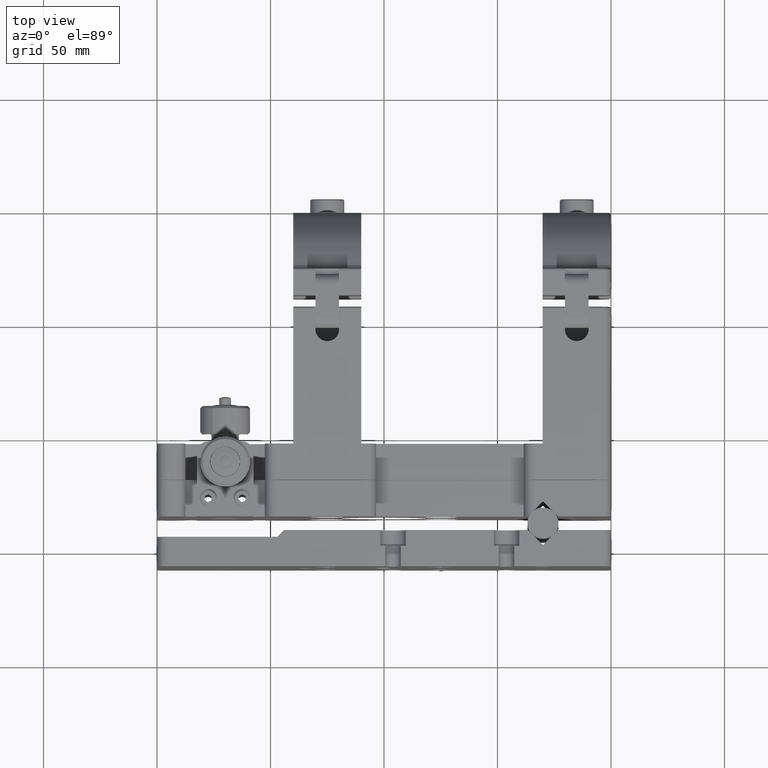
[diagram: clean part render]
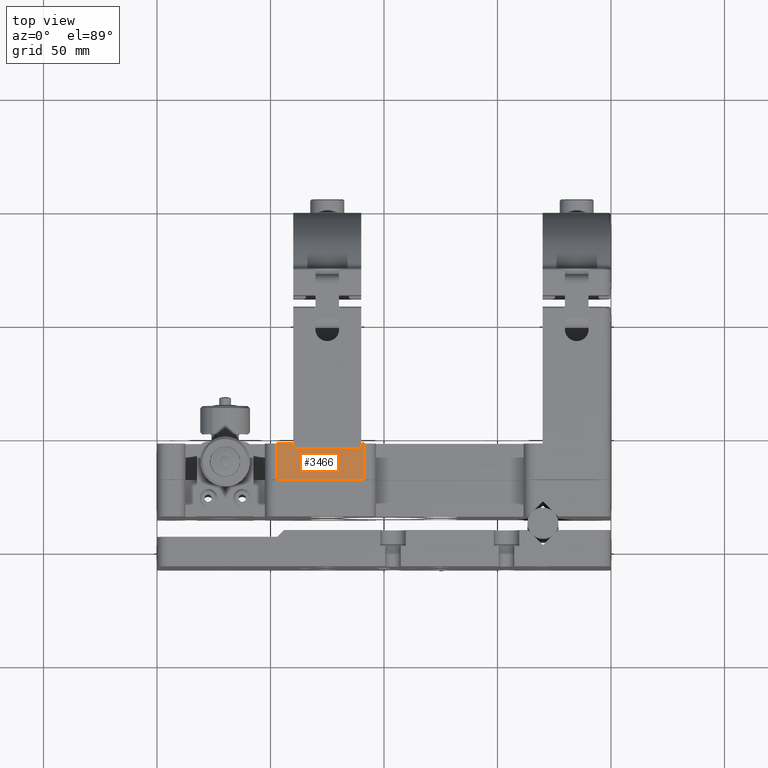
[diagram: same view with one face highlighted and labeled with its STEP entity id]
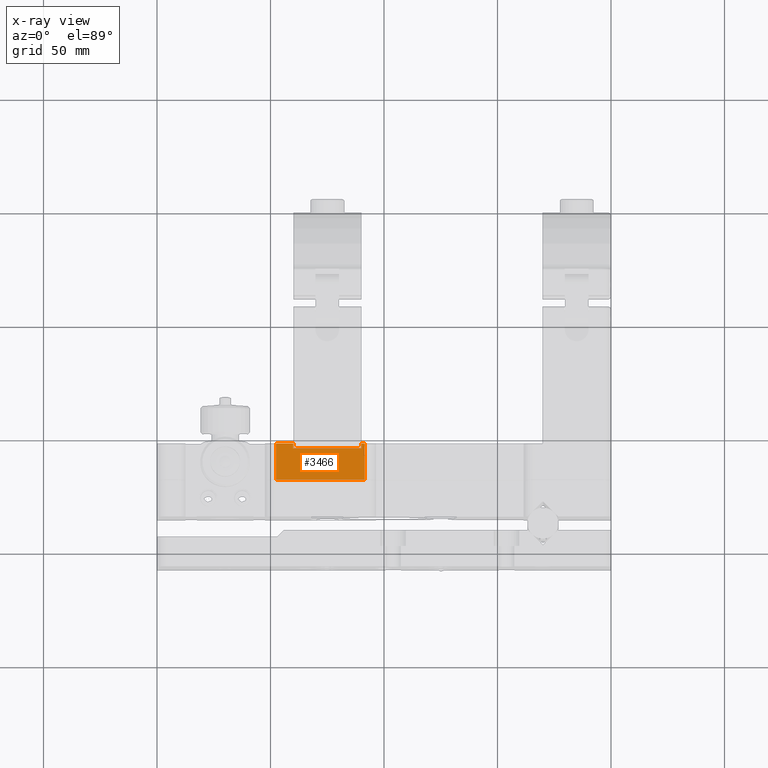
[diagram: x-ray of the same camera — body ghosted, the highlighted face saturated]
A machine part, top view. The second image highlights one B-rep face of the part: STEP entity #3466.
The next image is the same camera in x-ray: the body ghosted, the highlighted face saturated — about 0% of this face is hidden behind the body in this view.
In plain terms, the highlighted planar face has unit normal (0, 0, -1).
Its self-contained STEP definition (entity closure, byte-faithful):
#123 = VERTEX_POINT ( 'NONE', #40214 ) ;
#2191 = CARTESIAN_POINT ( 'NONE',  ( -99.99999999999998579, 46.09999999999966036, 55.00000000000000000 ) ) ;
#2724 = CARTESIAN_POINT ( 'NONE',  ( -47.49999999999999289, 30.09999999999966036, 55.00000000000000000 ) ) ;
#2845 = ORIENTED_EDGE ( 'NONE', *, *, #12804, .T. ) ;
#2850 = DIRECTION ( 'NONE',  ( 1.000000000000000000, 0.000000000000000000, 0.000000000000000000 ) ) ;
#3466 = ADVANCED_FACE ( 'NONE', ( #42874 ), #34938, .F. ) ;
#4207 = LINE ( 'NONE', #40347, #46943 ) ;
#4858 = CARTESIAN_POINT ( 'NONE',  ( -39.99999999999996447, 43.89999999999966462, 55.00000000000000000 ) ) ;
#5433 = ORIENTED_EDGE ( 'NONE', *, *, #16716, .F. ) ;
#5953 = ORIENTED_EDGE ( 'NONE', *, *, #22636, .T. ) ;
#6798 = DIRECTION ( 'NONE',  ( -0.000000000000000000, 1.000000000000000000, -0.000000000000000000 ) ) ;
#7733 = ORIENTED_EDGE ( 'NONE', *, *, #25068, .F. ) ;
#8231 = CARTESIAN_POINT ( 'NONE',  ( -99.99999999999998579, 30.09999999999966036, 55.00000000000000000 ) ) ;
#9879 = VERTEX_POINT ( 'NONE', #43553 ) ;
#10507 = EDGE_CURVE ( 'NONE', #13935, #9879, #41689, .T. ) ;
#11215 = VECTOR ( 'NONE', #28879, 1000.000000000000000 ) ;
#11571 = VECTOR ( 'NONE', #29813, 1000.000000000000000 ) ;
#11772 = VERTEX_POINT ( 'NONE', #49079 ) ;
#12804 = EDGE_CURVE ( 'NONE', #16341, #45919, #22806, .T. ) ;
#13935 = VERTEX_POINT ( 'NONE', #49245 ) ;
#14968 = VERTEX_POINT ( 'NONE', #4858 ) ;
#15438 = DIRECTION ( 'NONE',  ( -1.000000000000000000, 0.000000000000000000, -0.000000000000000000 ) ) ;
#16341 = VERTEX_POINT ( 'NONE', #31335 ) ;
#16440 = DIRECTION ( 'NONE',  ( 1.000000000000000000, 0.000000000000000000, 0.000000000000000000 ) ) ;
#16716 = EDGE_CURVE ( 'NONE', #9879, #123, #29127, .T. ) ;
#17366 = CARTESIAN_POINT ( 'NONE',  ( -8.499999999999978684, 46.09999999999966036, 55.00000000000000000 ) ) ;
#18507 = CARTESIAN_POINT ( 'NONE',  ( -99.99999999999998579, 46.09999999999966036, 55.00000000000000000 ) ) ;
#19238 = ORIENTED_EDGE ( 'NONE', *, *, #49536, .T. ) ;
#22276 = VERTEX_POINT ( 'NONE', #22986 ) ;
#22636 = EDGE_CURVE ( 'NONE', #45919, #11772, #24127, .T. ) ;
#22806 = LINE ( 'NONE', #26402, #34884 ) ;
#22986 = CARTESIAN_POINT ( 'NONE',  ( -39.99999999999996447, 46.09999999999966036, 55.00000000000000000 ) ) ;
#24127 = LINE ( 'NONE', #8231, #26998 ) ;
#25068 = EDGE_CURVE ( 'NONE', #14968, #13935, #41852, .T. ) ;
#26402 = CARTESIAN_POINT ( 'NONE',  ( -47.49999999999999289, 46.09999999999966036, 55.00000000000000000 ) ) ;
#26986 = DIRECTION ( 'NONE',  ( 0.000000000000000000, 0.000000000000000000, -1.000000000000000000 ) ) ;
#26998 = VECTOR ( 'NONE', #16440, 1000.000000000000000 ) ;
#28145 = EDGE_CURVE ( 'NONE', #14968, #22276, #4207, .T. ) ;
#28879 = DIRECTION ( 'NONE',  ( 1.000000000000000000, 0.000000000000000000, 0.000000000000000000 ) ) ;
#29127 = LINE ( 'NONE', #2191, #11215 ) ;
#29149 = LINE ( 'NONE', #17366, #33708 ) ;
#29813 = DIRECTION ( 'NONE',  ( 1.000000000000000000, -0.000000000000000000, -0.000000000000000000 ) ) ;
#29892 = CARTESIAN_POINT ( 'NONE',  ( -9.999999999999966249, 43.89999999999966462, 55.00000000000000000 ) ) ;
#30347 = ORIENTED_EDGE ( 'NONE', *, *, #46376, .F. ) ;
#30376 = VECTOR ( 'NONE', #2850, 1000.000000000000000 ) ;
#31335 = CARTESIAN_POINT ( 'NONE',  ( -47.49999999999999289, 46.09999999999966036, 55.00000000000000000 ) ) ;
#33708 = VECTOR ( 'NONE', #45293, 1000.000000000000000 ) ;
#34884 = VECTOR ( 'NONE', #45643, 1000.000000000000000 ) ;
#34938 = PLANE ( 'NONE',  #37952 ) ;
#36251 = DIRECTION ( 'NONE',  ( -0.000000000000000000, 1.000000000000000000, -0.000000000000000000 ) ) ;
#37763 = CARTESIAN_POINT ( 'NONE',  ( -9.999999999999966249, 43.89999999999966462, 55.00000000000000000 ) ) ;
#37952 = AXIS2_PLACEMENT_3D ( 'NONE', #38531, #26986, #15438 ) ;
#38255 = LINE ( 'NONE', #18507, #30376 ) ;
#38531 = CARTESIAN_POINT ( 'NONE',  ( -99.99999999999998579, 46.09999999999966036, 55.00000000000000000 ) ) ;
#40214 = CARTESIAN_POINT ( 'NONE',  ( -8.499999999999978684, 46.09999999999966036, 55.00000000000000000 ) ) ;
#40347 = CARTESIAN_POINT ( 'NONE',  ( -39.99999999999996447, 43.89999999999966462, 55.00000000000000000 ) ) ;
#41689 = LINE ( 'NONE', #29892, #42325 ) ;
#41852 = LINE ( 'NONE', #37763, #11571 ) ;
#41918 = ORIENTED_EDGE ( 'NONE', *, *, #10507, .F. ) ;
#42325 = VECTOR ( 'NONE', #6798, 1000.000000000000000 ) ;
#42874 = FACE_OUTER_BOUND ( 'NONE', #47554, .T. ) ;
#43553 = CARTESIAN_POINT ( 'NONE',  ( -9.999999999999966249, 46.09999999999966036, 55.00000000000000000 ) ) ;
#45293 = DIRECTION ( 'NONE',  ( 0.000000000000000000, 1.000000000000000000, 0.000000000000000000 ) ) ;
#45643 = DIRECTION ( 'NONE',  ( 0.000000000000000000, -1.000000000000000000, 0.000000000000000000 ) ) ;
#45919 = VERTEX_POINT ( 'NONE', #2724 ) ;
#46376 = EDGE_CURVE ( 'NONE', #16341, #22276, #38255, .T. ) ;
#46943 = VECTOR ( 'NONE', #36251, 1000.000000000000000 ) ;
#47554 = EDGE_LOOP ( 'NONE', ( #30347, #2845, #5953, #19238, #5433, #41918, #7733, #49481 ) ) ;
#49079 = CARTESIAN_POINT ( 'NONE',  ( -8.499999999999978684, 30.09999999999966036, 55.00000000000000000 ) ) ;
#49245 = CARTESIAN_POINT ( 'NONE',  ( -9.999999999999966249, 43.89999999999966462, 55.00000000000000000 ) ) ;
#49481 = ORIENTED_EDGE ( 'NONE', *, *, #28145, .T. ) ;
#49536 = EDGE_CURVE ( 'NONE', #11772, #123, #29149, .T. ) ;